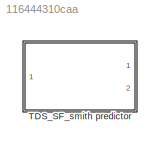
MODEL slx_116444310caa
KIND model
CONFIG AbsTol = auto
CONFIG EnableMultiTasking = off
CONFIG FixedStep = auto
CONFIG MaxStep = auto
CONFIG MinStep = auto
CONFIG RelTol = 1e-3
CONFIG SampleTimeConstraint = Unconstrained
CONFIG Solver = VariableStepAuto
CONFIG SolverName = VariableStepAuto
CONFIG StartTime = 0.0
CONFIG StopTime = 1500
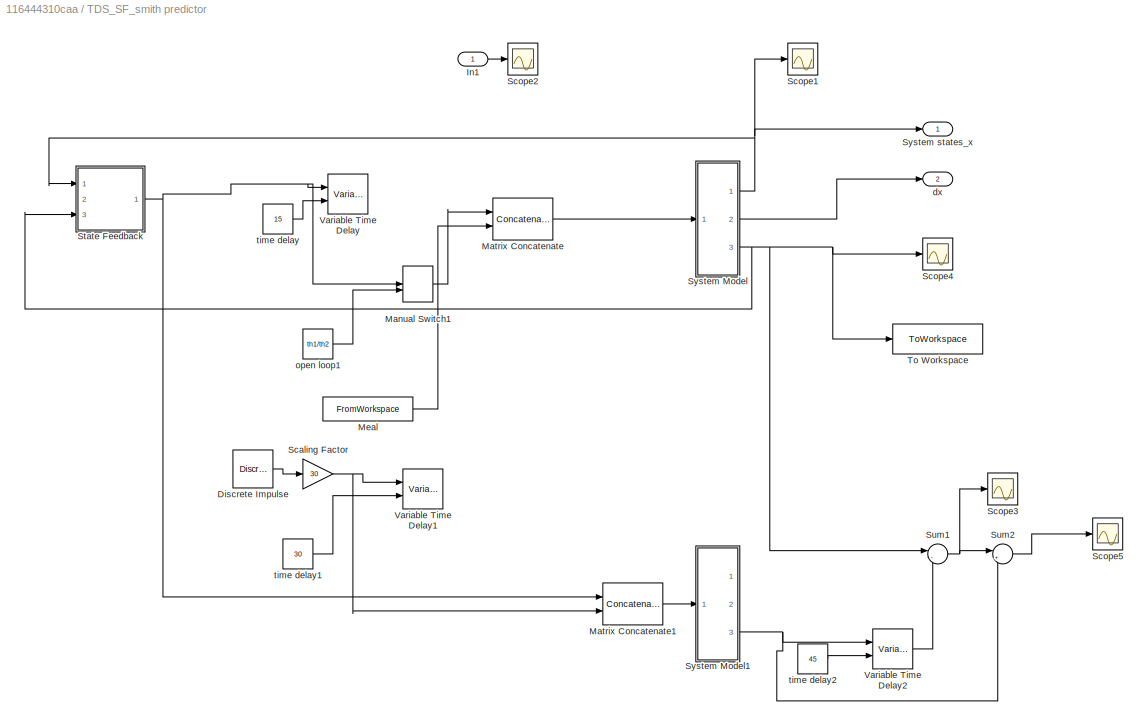
BLOCK [SubSystem] TDS_SF_smith predictor
  Ports = [1, 2]
  RequestExecContextInheritance = off
BLOCK [Reference] TDS_SF_smith predictor/Discrete Impulse  REF=dspsrcs4/Discrete 
Impulse
  Ports = [0, 1]
  SourceBlock = dspsrcs4/Discrete \nImpulse
  SourceProductBaseCode = DS
  SourceProductName = DSP System Toolbox
  SourceType = Discrete Impulse
BLOCK [Inport] TDS_SF_smith predictor/In1
  IconDisplay = Port number
BLOCK [ManualSwitch] TDS_SF_smith predictor/Manual Switch1
BLOCK [Concatenate] TDS_SF_smith predictor/Matrix Concatenate
  ConcatenateDimension = 2
  Ports = [2, 1]
BLOCK [Concatenate] TDS_SF_smith predictor/Matrix Concatenate1
  ConcatenateDimension = 2
  Ports = [2, 1]
BLOCK [FromWorkspace] TDS_SF_smith predictor/Meal
  SampleTime = 0
  VariableName = [temps'  repas']
  ZeroCross = on
BLOCK [Gain] TDS_SF_smith predictor/Scaling Factor
  Gain = 30
  OutDataTypeStr = Inherit: Inherit via internal rule
  ParamDataTypeStr = Inherit: Inherit via internal rule
  SaturateOnIntegerOverflow = off
BLOCK [Scope] TDS_SF_smith predictor/Scope1
  Floating = off
  NumInputPorts = 1
  Ports = [1]
  ScopeSpecificationString = Simulink.scopes.TimeScopeBlockCfg('CurrentConfiguration', extmgr.ConfigurationSet(extmgr.Configuration('Core','General UI',true),extmgr.Configuration('Core','Source UI',true),extmgr.Configuration('Sources','WiredSimulink',true,'DataLoggingVariableName','ScopeData2'),extmgr.Configuration('Visuals','Time Domain',true,'SerializedDisplays',{struct('MinYLimReal','-17.88692','MaxYLimReal','160.98226','Y...<+1561ch>
BLOCK [Scope] TDS_SF_smith predictor/Scope2
  Floating = off
  NumInputPorts = 1
  Ports = [1]
  ScopeSpecificationString = Simulink.scopes.TimeScopeBlockCfg('CurrentConfiguration', extmgr.ConfigurationSet(extmgr.Configuration('Core','General UI',true),extmgr.Configuration('Core','Source UI',true),extmgr.Configuration('Sources','WiredSimulink',true,'DataLoggingVariableName','ScopeData3'),extmgr.Configuration('Visuals','Time Domain',true,'SerializedDisplays',{struct('MinYLimReal','-0.05207','MaxYLimReal','0.09304','YLab...<+1468ch>
BLOCK [Scope] TDS_SF_smith predictor/Scope3
  Floating = off
  NumInputPorts = 1
  Ports = [1]
  ScopeSpecificationString = Simulink.scopes.TimeScopeBlockCfg('CurrentConfiguration', extmgr.ConfigurationSet(extmgr.Configuration('Core','General UI',true,'FigureColor',[0.501960784313725 0.501960784313725 0.501960784313725]),extmgr.Configuration('Core','Source UI',true),extmgr.Configuration('Sources','WiredSimulink',true,'DataLoggingVariableName','ScopeData2'),extmgr.Configuration('Visuals','Time Domain',true,'SerializedDi...<+1764ch>
BLOCK [Scope] TDS_SF_smith predictor/Scope4
  Floating = off
  NumInputPorts = 1
  Ports = [1]
  ScopeSpecificationString = Simulink.scopes.TimeScopeBlockCfg('CurrentConfiguration', extmgr.ConfigurationSet(extmgr.Configuration('Core','General UI',true,'FigureColor',[0.501960784313725 0.501960784313725 0.501960784313725]),extmgr.Configuration('Core','Source UI',true),extmgr.Configuration('Sources','WiredSimulink',true,'DataLoggingVariableName','ScopeData1'),extmgr.Configuration('Visuals','Time Domain',true,'SerializedDi...<+1821ch>
BLOCK [Scope] TDS_SF_smith predictor/Scope5
  Floating = off
  NumInputPorts = 1
  Ports = [1]
  ScopeSpecificationString = Simulink.scopes.TimeScopeBlockCfg('CurrentConfiguration', extmgr.ConfigurationSet(extmgr.Configuration('Core','General UI',true,'FigureColor',[0.501960784313725 0.501960784313725 0.501960784313725]),extmgr.Configuration('Core','Source UI',true),extmgr.Configuration('Sources','WiredSimulink',true,'DataLoggingVariableName','ScopeData1'),extmgr.Configuration('Visuals','Time Domain',true,'SerializedDi...<+1768ch>
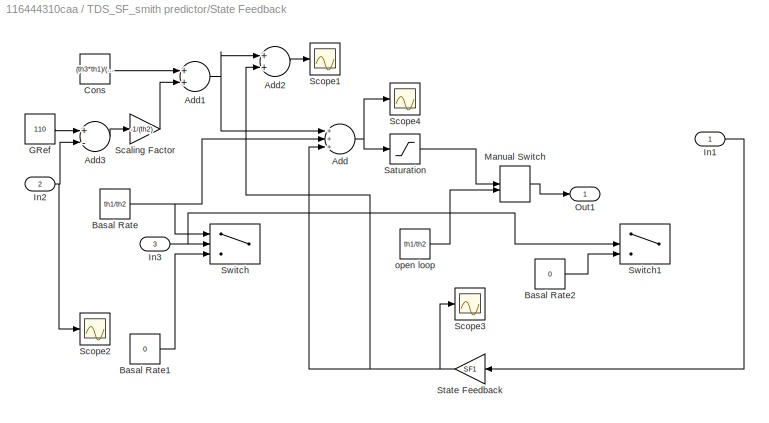
BLOCK [SubSystem] TDS_SF_smith predictor/State Feedback 
  Ports = [3, 1]
  RequestExecContextInheritance = off
BLOCK [Sum] TDS_SF_smith predictor/State Feedback /Add
  InputSameDT = off
  Inputs = +++
  OutDataTypeStr = Inherit: Inherit via internal rule
  Ports = [3, 1]
  SaturateOnIntegerOverflow = off
BLOCK [Sum] TDS_SF_smith predictor/State Feedback /Add1
  InputSameDT = off
  OutDataTypeStr = Inherit: Inherit via internal rule
  Ports = [2, 1]
  SaturateOnIntegerOverflow = off
BLOCK [Sum] TDS_SF_smith predictor/State Feedback /Add2
  InputSameDT = off
  OutDataTypeStr = Inherit: Inherit via internal rule
  Ports = [2, 1]
  SaturateOnIntegerOverflow = off
BLOCK [Sum] TDS_SF_smith predictor/State Feedback /Add3
  InputSameDT = off
  Inputs = +-
  OutDataTypeStr = Inherit: Inherit via internal rule
  Ports = [2, 1]
  SaturateOnIntegerOverflow = off
BLOCK [Constant] TDS_SF_smith predictor/State Feedback /Basal Rate
  Value = th1/th2
  VectorParams1D = off
BLOCK [Constant] TDS_SF_smith predictor/State Feedback /Basal Rate1
  Value = 0
  VectorParams1D = off
BLOCK [Constant] TDS_SF_smith predictor/State Feedback /Basal Rate2
  Value = 0
  VectorParams1D = off
BLOCK [Constant] TDS_SF_smith predictor/State Feedback /Cons
  Value = (th3*th1)/(th2)
  VectorParams1D = off
BLOCK [Constant] TDS_SF_smith predictor/State Feedback /GRef
  Value = 110
BLOCK [Inport] TDS_SF_smith predictor/State Feedback /In1
  IconDisplay = Port number
BLOCK [Inport] TDS_SF_smith predictor/State Feedback /In2
  IconDisplay = Port number
  Port = 2
BLOCK [Inport] TDS_SF_smith predictor/State Feedback /In3
  IconDisplay = Port number
  Port = 3
BLOCK [ManualSwitch] TDS_SF_smith predictor/State Feedback /Manual Switch
BLOCK [Outport] TDS_SF_smith predictor/State Feedback /Out1
  IconDisplay = Port number
BLOCK [Saturate] TDS_SF_smith predictor/State Feedback /Saturation
  InputPortMap = u0
  LowerLimit = 0
  Ports = [1, 1]
  UpperLimit = 2
BLOCK [Gain] TDS_SF_smith predictor/State Feedback /Scaling Factor
  Gain = -1/(th2)
  OutDataTypeStr = Inherit: Inherit via internal rule
  ParamDataTypeStr = Inherit: Inherit via internal rule
  SaturateOnIntegerOverflow = off
BLOCK [Scope] TDS_SF_smith predictor/State Feedback /Scope1
  Floating = off
  NumInputPorts = 1
  Ports = [1]
  ScopeSpecificationString = Simulink.scopes.TimeScopeBlockCfg('CurrentConfiguration', extmgr.ConfigurationSet(extmgr.Configuration('Core','General UI',true),extmgr.Configuration('Core','Source UI',true),extmgr.Configuration('Sources','WiredSimulink',true,'DataLoggingVariableName','ScopeData1'),extmgr.Configuration('Visuals','Time Domain',true,'SerializedDisplays',{struct('MinYLimReal','-0.23703','MaxYLimReal','2.13326','YLab...<+1484ch>
BLOCK [Scope] TDS_SF_smith predictor/State Feedback /Scope2
  Floating = off
  NumInputPorts = 1
  Ports = [1]
  ScopeSpecificationString = Simulink.scopes.TimeScopeBlockCfg('CurrentConfiguration', extmgr.ConfigurationSet(extmgr.Configuration('Core','General UI',true),extmgr.Configuration('Core','Source UI',true),extmgr.Configuration('Sources','WiredSimulink',true,'DataLoggingVariableName','ScopeData1'),extmgr.Configuration('Visuals','Time Domain',true,'SerializedDisplays',{struct('MinYLimReal','-685.68937','MaxYLimReal','320.61326','...<+1498ch>
BLOCK [Scope] TDS_SF_smith predictor/State Feedback /Scope3
  Floating = off
  NumInputPorts = 1
  Ports = [1]
  ScopeSpecificationString = Simulink.scopes.TimeScopeBlockCfg('CurrentConfiguration', extmgr.ConfigurationSet(extmgr.Configuration('Core','General UI',true),extmgr.Configuration('Core','Source UI',true),extmgr.Configuration('Sources','WiredSimulink',true,'DataLoggingVariableName','ScopeData1'),extmgr.Configuration('Visuals','Time Domain',true,'SerializedDisplays',{struct('MinYLimReal','-0.02629','MaxYLimReal','0.00065','YLab...<+1488ch>
BLOCK [Scope] TDS_SF_smith predictor/State Feedback /Scope4
  Floating = off
  NumInputPorts = 1
  Ports = [1]
  ScopeSpecificationString = Simulink.scopes.TimeScopeBlockCfg('CurrentConfiguration', extmgr.ConfigurationSet(extmgr.Configuration('Core','General UI',true),extmgr.Configuration('Core','Source UI',true),extmgr.Configuration('Sources','WiredSimulink',true,'DataLoggingVariableName','ScopeData2'),extmgr.Configuration('Visuals','Time Domain',true,'SerializedDisplays',{struct('MinYLimReal','-0.88077','MaxYLimReal','2.16911','YLab...<+1433ch>
BLOCK [Gain] TDS_SF_smith predictor/State Feedback /State Feedback
  Gain = SF1
  Multiplication = Matrix(K*u)
  OutDataTypeStr = Inherit: Inherit via internal rule
  ParamDataTypeStr = Inherit: Inherit via internal rule
  SaturateOnIntegerOverflow = off
BLOCK [Switch] TDS_SF_smith predictor/State Feedback /Switch
  Criteria = u2 > Threshold
  InputSameDT = off
  SaturateOnIntegerOverflow = off
  Threshold = 100
BLOCK [Switch] TDS_SF_smith predictor/State Feedback /Switch1
  Criteria = u2 > Threshold
  InputSameDT = off
  SaturateOnIntegerOverflow = off
  Threshold = 100
BLOCK [Constant] TDS_SF_smith predictor/State Feedback /open loop
  Value = th1/th2
BLOCK [Sum] TDS_SF_smith predictor/Sum1
  IconShape = round
  InputSameDT = off
  Inputs = |-+
  OutDataTypeStr = Inherit: Inherit via internal rule
  Ports = [2, 1]
  SaturateOnIntegerOverflow = off
BLOCK [Sum] TDS_SF_smith predictor/Sum2
  IconShape = round
  InputSameDT = off
  Inputs = |++
  OutDataTypeStr = Inherit: Inherit via internal rule
  Ports = [2, 1]
  SaturateOnIntegerOverflow = off
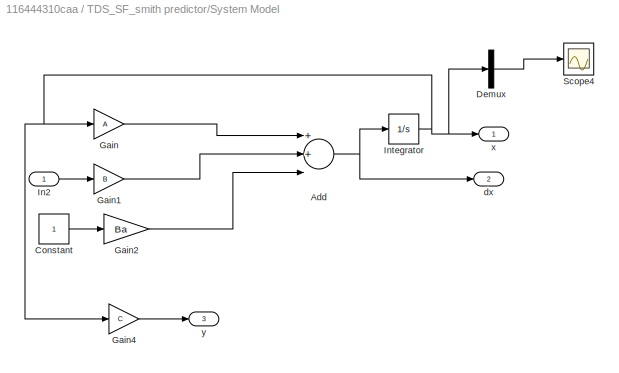
BLOCK [SubSystem] TDS_SF_smith predictor/System Model
  Ports = [1, 3]
  RequestExecContextInheritance = off
BLOCK [Sum] TDS_SF_smith predictor/System Model/Add
  InputSameDT = off
  Inputs = 3
  OutDataTypeStr = Inherit: Inherit via internal rule
  Ports = [3, 1]
  SaturateOnIntegerOverflow = off
BLOCK [Constant] TDS_SF_smith predictor/System Model/Constant
BLOCK [Demux] TDS_SF_smith predictor/System Model/Demux
  DisplayOption = bar
  Outputs = 3
  Ports = [1, 3]
BLOCK [Gain] TDS_SF_smith predictor/System Model/Gain
  Gain = A
  Multiplication = Matrix(K*u)
  OutDataTypeStr = Inherit: Inherit via internal rule
  ParamDataTypeStr = Inherit: Inherit via internal rule
  SaturateOnIntegerOverflow = off
BLOCK [Gain] TDS_SF_smith predictor/System Model/Gain1
  Gain = B
  Multiplication = Matrix(K*u)
  OutDataTypeStr = Inherit: Inherit via internal rule
  ParamDataTypeStr = Inherit: Inherit via internal rule
  SaturateOnIntegerOverflow = off
BLOCK [Gain] TDS_SF_smith predictor/System Model/Gain2
  Gain = Ba
  Multiplication = Matrix(K*u)
  OutDataTypeStr = Inherit: Inherit via internal rule
  ParamDataTypeStr = Inherit: Inherit via internal rule
  SaturateOnIntegerOverflow = off
BLOCK [Gain] TDS_SF_smith predictor/System Model/Gain4
  Gain = C
  Multiplication = Matrix(K*u)
  OutDataTypeStr = Inherit: Inherit via internal rule
  ParamDataTypeStr = Inherit: Inherit via internal rule
  SaturateOnIntegerOverflow = off
BLOCK [Inport] TDS_SF_smith predictor/System Model/In2
  IconDisplay = Port number
BLOCK [Integrator] TDS_SF_smith predictor/System Model/Integrator
  InitialCondition = [110; th1/th2; 0]
  Ports = [1, 1]
  ZeroCross = off
BLOCK [Scope] TDS_SF_smith predictor/System Model/Scope4
  Floating = off
  NumInputPorts = 1
  Ports = [1]
  ScopeSpecificationString = Simulink.scopes.TimeScopeBlockCfg('CurrentConfiguration', extmgr.ConfigurationSet(extmgr.Configuration('Core','General UI',true,'FigureColor',[0.501960784313725 0.501960784313725 0.501960784313725]),extmgr.Configuration('Core','Source UI',true),extmgr.Configuration('Sources','WiredSimulink',true,'DataLoggingVariableName','ScopeData4'),extmgr.Configuration('Visuals','Time Domain',true,'SerializedDi...<+1817ch>
BLOCK [Outport] TDS_SF_smith predictor/System Model/dx
  IconDisplay = Port number
  Port = 2
BLOCK [Outport] TDS_SF_smith predictor/System Model/x
  IconDisplay = Port number
BLOCK [Outport] TDS_SF_smith predictor/System Model/y
  IconDisplay = Port number
  Port = 3
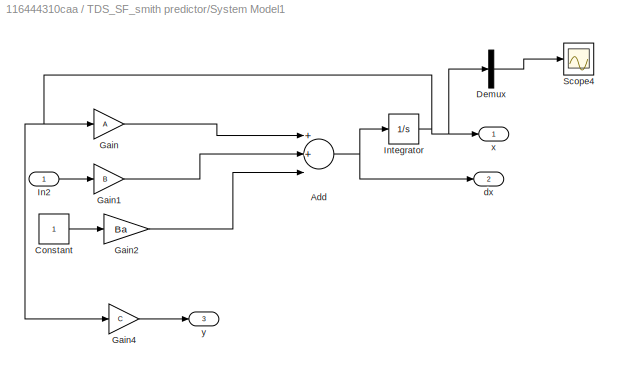
BLOCK [SubSystem] TDS_SF_smith predictor/System Model1
  Ports = [1, 3]
  RequestExecContextInheritance = off
BLOCK [Sum] TDS_SF_smith predictor/System Model1/Add
  InputSameDT = off
  Inputs = 3
  OutDataTypeStr = Inherit: Inherit via internal rule
  Ports = [3, 1]
  SaturateOnIntegerOverflow = off
BLOCK [Constant] TDS_SF_smith predictor/System Model1/Constant
BLOCK [Demux] TDS_SF_smith predictor/System Model1/Demux
  DisplayOption = bar
  Outputs = 3
  Ports = [1, 3]
BLOCK [Gain] TDS_SF_smith predictor/System Model1/Gain
  Gain = A
  Multiplication = Matrix(K*u)
  OutDataTypeStr = Inherit: Inherit via internal rule
  ParamDataTypeStr = Inherit: Inherit via internal rule
  SaturateOnIntegerOverflow = off
BLOCK [Gain] TDS_SF_smith predictor/System Model1/Gain1
  Gain = B
  Multiplication = Matrix(K*u)
  OutDataTypeStr = Inherit: Inherit via internal rule
  ParamDataTypeStr = Inherit: Inherit via internal rule
  SaturateOnIntegerOverflow = off
BLOCK [Gain] TDS_SF_smith predictor/System Model1/Gain2
  Gain = Ba
  Multiplication = Matrix(K*u)
  OutDataTypeStr = Inherit: Inherit via internal rule
  ParamDataTypeStr = Inherit: Inherit via internal rule
  SaturateOnIntegerOverflow = off
BLOCK [Gain] TDS_SF_smith predictor/System Model1/Gain4
  Gain = C
  Multiplication = Matrix(K*u)
  OutDataTypeStr = Inherit: Inherit via internal rule
  ParamDataTypeStr = Inherit: Inherit via internal rule
  SaturateOnIntegerOverflow = off
BLOCK [Inport] TDS_SF_smith predictor/System Model1/In2
  IconDisplay = Port number
BLOCK [Integrator] TDS_SF_smith predictor/System Model1/Integrator
  InitialCondition = [110; th1/th2; 0]
  Ports = [1, 1]
  ZeroCross = off
BLOCK [Scope] TDS_SF_smith predictor/System Model1/Scope4
  Floating = off
  NumInputPorts = 1
  Ports = [1]
  ScopeSpecificationString = Simulink.scopes.TimeScopeBlockCfg('CurrentConfiguration', extmgr.ConfigurationSet(extmgr.Configuration('Core','General UI',true,'FigureColor',[0.501960784313725 0.501960784313725 0.501960784313725]),extmgr.Configuration('Core','Source UI',true),extmgr.Configuration('Sources','WiredSimulink',true,'DataLoggingVariableName','ScopeData4'),extmgr.Configuration('Visuals','Time Domain',true,'SerializedDi...<+1756ch>
BLOCK [Outport] TDS_SF_smith predictor/System Model1/dx
  IconDisplay = Port number
  Port = 2
BLOCK [Outport] TDS_SF_smith predictor/System Model1/x
  IconDisplay = Port number
BLOCK [Outport] TDS_SF_smith predictor/System Model1/y
  IconDisplay = Port number
  Port = 3
BLOCK [Outport] TDS_SF_smith predictor/System states_x
  IconDisplay = Port number
BLOCK [ToWorkspace] TDS_SF_smith predictor/To Workspace
  FixptAsFi = on
  MaxDataPoints = inf
  Ports = [1]
  SampleTime = -1
  SaveFormat = Timeseries
  VariableName = SimX
BLOCK [VariableTransportDelay] TDS_SF_smith predictor/Variable Time Delay
  InitialOutput = th1/th2
  MaximumDelay = 20
  Ports = [2, 1]
BLOCK [VariableTransportDelay] TDS_SF_smith predictor/Variable Time Delay1
  InitialOutput = 0.00000000000001
  MaximumDelay = 40
  Ports = [2, 1]
BLOCK [VariableTransportDelay] TDS_SF_smith predictor/Variable Time Delay2
  InitialOutput = 110
  MaximumDelay = 60
  Ports = [2, 1]
BLOCK [Outport] TDS_SF_smith predictor/dx
  IconDisplay = Port number
  Port = 2
BLOCK [Constant] TDS_SF_smith predictor/open loop1
  Value = th1/th2
BLOCK [Constant] TDS_SF_smith predictor/time delay
  Value = 15
  VectorParams1D = off
BLOCK [Constant] TDS_SF_smith predictor/time delay1
  Value = 30
  VectorParams1D = off
BLOCK [Constant] TDS_SF_smith predictor/time delay2
  Value = 45
  VectorParams1D = off
LINE TDS_SF_smith predictor/Discrete Impulse:1 -> TDS_SF_smith predictor/Scaling Factor:1
LINE TDS_SF_smith predictor/In1:1 -> TDS_SF_smith predictor/Scope2:1
LINE TDS_SF_smith predictor/Manual Switch1:1 -> TDS_SF_smith predictor/Matrix Concatenate:1
LINE TDS_SF_smith predictor/Matrix Concatenate1:1 -> TDS_SF_smith predictor/System Model1:1
LINE TDS_SF_smith predictor/Matrix Concatenate:1 -> TDS_SF_smith predictor/System Model:1
LINE TDS_SF_smith predictor/Meal:1 -> TDS_SF_smith predictor/Matrix Concatenate:2
NET TDS_SF_smith predictor/Scaling Factor:1 -> TDS_SF_smith predictor/Matrix Concatenate1:2, TDS_SF_smith predictor/Variable Time Delay1:1
NET TDS_SF_smith predictor/State Feedback /Add1:1 -> TDS_SF_smith predictor/State Feedback /Add2:1, TDS_SF_smith predictor/State Feedback /Add:1
LINE TDS_SF_smith predictor/State Feedback /Add2:1 -> TDS_SF_smith predictor/State Feedback /Scope1:1
LINE TDS_SF_smith predictor/State Feedback /Add3:1 -> TDS_SF_smith predictor/State Feedback /Scaling Factor:1
NET TDS_SF_smith predictor/State Feedback /Add:1 -> TDS_SF_smith predictor/State Feedback /Saturation:1, TDS_SF_smith predictor/State Feedback /Scope4:1
LINE TDS_SF_smith predictor/State Feedback /Basal Rate1:1 -> TDS_SF_smith predictor/State Feedback /Switch:3
LINE TDS_SF_smith predictor/State Feedback /Basal Rate2:1 -> TDS_SF_smith predictor/State Feedback /Switch1:3
NET TDS_SF_smith predictor/State Feedback /Basal Rate:1 -> TDS_SF_smith predictor/State Feedback /Add:2, TDS_SF_smith predictor/State Feedback /Switch:1
LINE TDS_SF_smith predictor/State Feedback /Cons:1 -> TDS_SF_smith predictor/State Feedback /Add1:1
LINE TDS_SF_smith predictor/State Feedback /GRef:1 -> TDS_SF_smith predictor/State Feedback /Add3:1
LINE TDS_SF_smith predictor/State Feedback /In1:1 -> TDS_SF_smith predictor/State Feedback /State Feedback:1
NET TDS_SF_smith predictor/State Feedback /In2:1 -> TDS_SF_smith predictor/State Feedback /Add3:2, TDS_SF_smith predictor/State Feedback /Scope2:1
NET TDS_SF_smith predictor/State Feedback /In3:1 -> TDS_SF_smith predictor/State Feedback /Switch1:2, TDS_SF_smith predictor/State Feedback /Switch:2
LINE TDS_SF_smith predictor/State Feedback /Manual Switch:1 -> TDS_SF_smith predictor/State Feedback /Out1:1
LINE TDS_SF_smith predictor/State Feedback /Saturation:1 -> TDS_SF_smith predictor/State Feedback /Manual Switch:1
LINE TDS_SF_smith predictor/State Feedback /Scaling Factor:1 -> TDS_SF_smith predictor/State Feedback /Add1:2
NET TDS_SF_smith predictor/State Feedback /State Feedback:1 -> TDS_SF_smith predictor/State Feedback /Add2:2, TDS_SF_smith predictor/State Feedback /Add:3, TDS_SF_smith predictor/State Feedback /Scope3:1
LINE TDS_SF_smith predictor/State Feedback /open loop:1 -> TDS_SF_smith predictor/State Feedback /Manual Switch:2
NET TDS_SF_smith predictor/State Feedback :1 -> TDS_SF_smith predictor/Manual Switch1:1, TDS_SF_smith predictor/Matrix Concatenate1:1, TDS_SF_smith predictor/Variable Time Delay:1
NET TDS_SF_smith predictor/Sum1:1 -> TDS_SF_smith predictor/Scope3:1, TDS_SF_smith predictor/Sum2:1
LINE TDS_SF_smith predictor/Sum2:1 -> TDS_SF_smith predictor/Scope5:1
NET TDS_SF_smith predictor/System Model/Add:1 -> TDS_SF_smith predictor/System Model/Integrator:1, TDS_SF_smith predictor/System Model/dx:1
LINE TDS_SF_smith predictor/System Model/Constant:1 -> TDS_SF_smith predictor/System Model/Gain2:1
LINE TDS_SF_smith predictor/System Model/Demux:2 -> TDS_SF_smith predictor/System Model/Scope4:1
LINE TDS_SF_smith predictor/System Model/Gain1:1 -> TDS_SF_smith predictor/System Model/Add:2
LINE TDS_SF_smith predictor/System Model/Gain2:1 -> TDS_SF_smith predictor/System Model/Add:3
LINE TDS_SF_smith predictor/System Model/Gain4:1 -> TDS_SF_smith predictor/System Model/y:1
LINE TDS_SF_smith predictor/System Model/Gain:1 -> TDS_SF_smith predictor/System Model/Add:1
LINE TDS_SF_smith predictor/System Model/In2:1 -> TDS_SF_smith predictor/System Model/Gain1:1
NET TDS_SF_smith predictor/System Model/Integrator:1 -> TDS_SF_smith predictor/System Model/Demux:1, TDS_SF_smith predictor/System Model/Gain4:1, TDS_SF_smith predictor/System Model/Gain:1, TDS_SF_smith predictor/System Model/x:1
NET TDS_SF_smith predictor/System Model1/Add:1 -> TDS_SF_smith predictor/System Model1/Integrator:1, TDS_SF_smith predictor/System Model1/dx:1
LINE TDS_SF_smith predictor/System Model1/Constant:1 -> TDS_SF_smith predictor/System Model1/Gain2:1
LINE TDS_SF_smith predictor/System Model1/Demux:2 -> TDS_SF_smith predictor/System Model1/Scope4:1
LINE TDS_SF_smith predictor/System Model1/Gain1:1 -> TDS_SF_smith predictor/System Model1/Add:2
LINE TDS_SF_smith predictor/System Model1/Gain2:1 -> TDS_SF_smith predictor/System Model1/Add:3
LINE TDS_SF_smith predictor/System Model1/Gain4:1 -> TDS_SF_smith predictor/System Model1/y:1
LINE TDS_SF_smith predictor/System Model1/Gain:1 -> TDS_SF_smith predictor/System Model1/Add:1
LINE TDS_SF_smith predictor/System Model1/In2:1 -> TDS_SF_smith predictor/System Model1/Gain1:1
NET TDS_SF_smith predictor/System Model1/Integrator:1 -> TDS_SF_smith predictor/System Model1/Demux:1, TDS_SF_smith predictor/System Model1/Gain4:1, TDS_SF_smith predictor/System Model1/Gain:1, TDS_SF_smith predictor/System Model1/x:1
NET TDS_SF_smith predictor/System Model1:3 -> TDS_SF_smith predictor/Sum2:2, TDS_SF_smith predictor/Variable Time Delay2:1
NET TDS_SF_smith predictor/System Model:1 -> TDS_SF_smith predictor/Scope1:1, TDS_SF_smith predictor/State Feedback :1, TDS_SF_smith predictor/System states_x:1
LINE TDS_SF_smith predictor/System Model:2 -> TDS_SF_smith predictor/dx:1
NET TDS_SF_smith predictor/System Model:3 -> TDS_SF_smith predictor/Scope4:1, TDS_SF_smith predictor/State Feedback :3, TDS_SF_smith predictor/Sum1:1, TDS_SF_smith predictor/To Workspace:1
LINE TDS_SF_smith predictor/Variable Time Delay2:1 -> TDS_SF_smith predictor/Sum1:2
LINE TDS_SF_smith predictor/open loop1:1 -> TDS_SF_smith predictor/Manual Switch1:2
LINE TDS_SF_smith predictor/time delay1:1 -> TDS_SF_smith predictor/Variable Time Delay1:2
LINE TDS_SF_smith predictor/time delay2:1 -> TDS_SF_smith predictor/Variable Time Delay2:2
LINE TDS_SF_smith predictor/time delay:1 -> TDS_SF_smith predictor/Variable Time Delay:2
note: NET lines group one-source signal fan-out (src -> all destinations, sorted); 1:1 wires keep LINE
